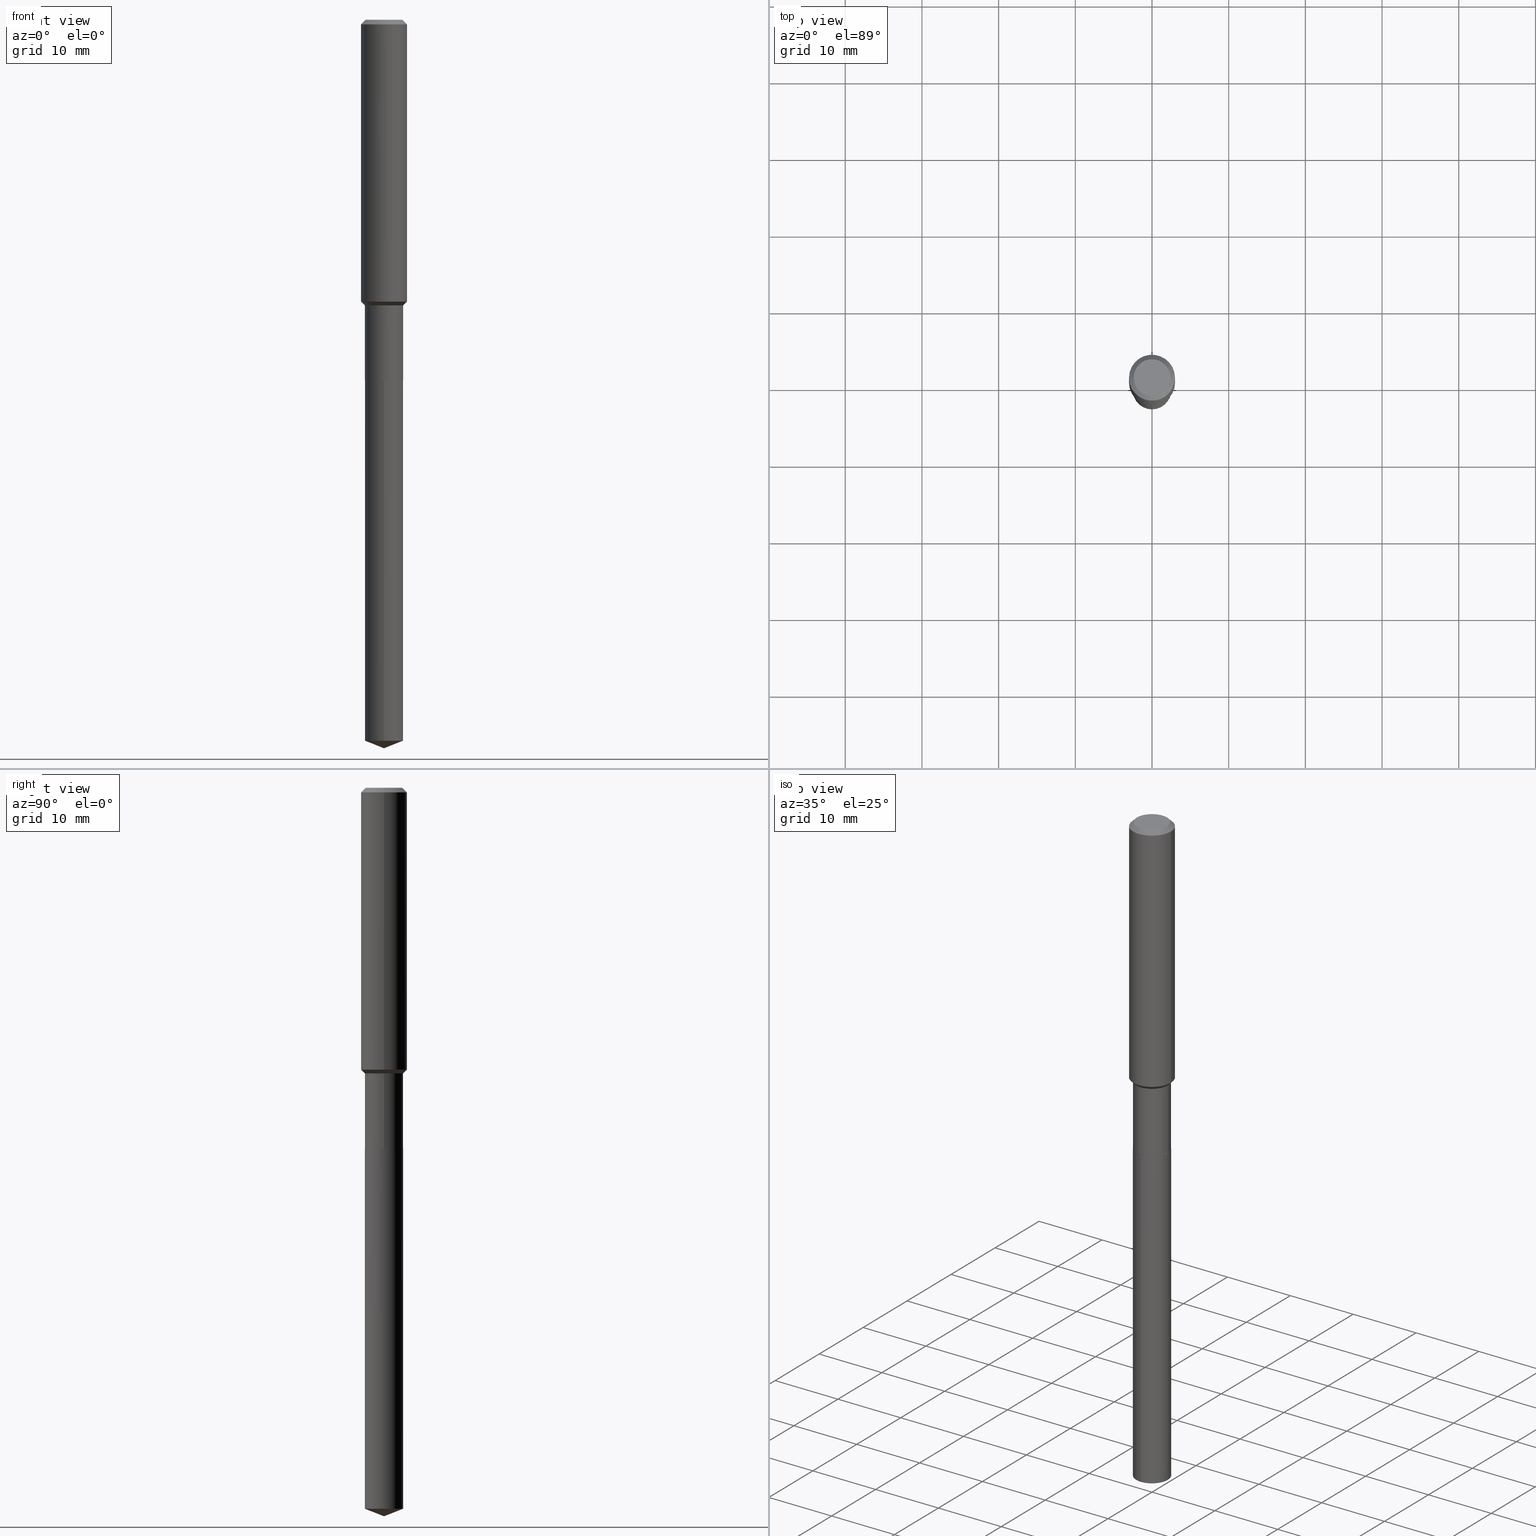
[diagram: canonical four-view strip — front | top / right | iso, engineering-drawing reading convention]
A machine part, canonical four-view strip (front | top / right | iso — engineering-drawing reading convention). The complete STEP part file that produces these views, byte-faithful:
ISO-10303-21;
HEADER;
FILE_DESCRIPTION (( 'STEP AP203' ),
    '1' );
FILE_NAME ('66626.STEP',
    '2024-04-25T02:19:41',
    ( '' ),
    ( '' ),
    'SwSTEP 2.0',
    'SolidWorks 2023',
    '' );
FILE_SCHEMA (( 'CONFIG_CONTROL_DESIGN' ));
ENDSEC;

DATA;
#1 = PERSON_AND_ORGANIZATION ( #208, #348 ) ;
#2 = CARTESIAN_POINT ( 'NONE',  ( 4.525095478964977954E-29, -6.460637069395358365E-15, -1.850400000000000489 ) ) ;
#3 = DIRECTION ( 'NONE',  ( 0.000000000000000000, 0.000000000000000000, 1.000000000000000000 ) ) ;
#4 = FACE_OUTER_BOUND ( 'NONE', #404, .T. ) ;
#5 = PERSON_AND_ORGANIZATION_ROLE ( 'classification_officer' ) ;
#6 = FACE_OUTER_BOUND ( 'NONE', #475, .T. ) ;
#7 =( GEOMETRIC_REPRESENTATION_CONTEXT ( 3 ) GLOBAL_UNCERTAINTY_ASSIGNED_CONTEXT ( ( #288 ) ) GLOBAL_UNIT_ASSIGNED_CONTEXT ( ( #235, #197, #446 ) ) REPRESENTATION_CONTEXT ( 'NONE', 'WORKASPACE' ) );
#8 = CARTESIAN_POINT ( 'NONE',  ( 6.995293233559089281E-16, 0.09844999999998707563, -3.701419513675709982 ) ) ;
#9 = EDGE_CURVE ( 'NONE', #81, #479, #367, .T. ) ;
#10 = DIRECTION ( 'NONE',  ( 1.000000000000000000, -6.982962677686269866E-15, 0.000000000000000000 ) ) ;
#11 = CARTESIAN_POINT ( 'NONE',  ( 0.09844999999999998197, -6.874726756182128559E-16, 4.800596035771097813E-30 ) ) ;
#12 = AXIS2_PLACEMENT_3D ( 'NONE', #82, #387, #429 ) ;
#13 = LINE ( 'NONE', #352, #461 ) ;
#14 = ORIENTED_EDGE ( 'NONE', *, *, #375, .F. ) ;
#15 = DIRECTION ( 'NONE',  ( -2.445468806185136597E-29, 3.491481338843145583E-15, 1.000000000000000000 ) ) ;
#16 = EDGE_LOOP ( 'NONE', ( #170, #201, #445, #440 ) ) ;
#17 = DIRECTION ( 'NONE',  ( -0.7071067811865486830, 7.493145998870357316E-15, 0.7071067811865462405 ) ) ;
#18 = EDGE_LOOP ( 'NONE', ( #333, #272, #195, #308 ) ) ;
#19 = AXIS2_PLACEMENT_3D ( 'NONE', #179, #75, #349 ) ;
#20 = DIRECTION ( 'NONE',  ( -0.7071067811865459074, 2.468850131082240100E-15, -0.7071067811865491270 ) ) ;
#21 = ADVANCED_FACE ( 'NONE', ( #325 ), #483, .T. ) ;
#22 = ORIENTED_EDGE ( 'NONE', *, *, #375, .T. ) ;
#23 = CARTESIAN_POINT ( 'NONE',  ( 3.538471089109583209E-29, -5.051998923239089154E-15, -1.446949999999999958 ) ) ;
#24 = ORIENTED_EDGE ( 'NONE', *, *, #405, .T. ) ;
#25 = DIRECTION ( 'NONE',  ( -6.982962677686265922E-15, -1.000000000000000000, 2.774858297271979165E-15 ) ) ;
#26 = VECTOR ( 'NONE', #20, 39.37007874015748143 ) ;
#27 = ORIENTED_EDGE ( 'NONE', *, *, #304, .T. ) ;
#28 = CYLINDRICAL_SURFACE ( 'NONE', #183, 0.1181000000000000799 ) ;
#29 = ORIENTED_EDGE ( 'NONE', *, *, #101, .F. ) ;
#30 = APPROVAL ( #344, 'UNSPECIFIED' ) ;
#31 = DATE_AND_TIME ( #373, #268 ) ;
#32 = CARTESIAN_POINT ( 'NONE',  ( 3.586524551151121675E-29, -5.120606531547357794E-15, -1.466600000000000126 ) ) ;
#33 = CIRCLE ( 'NONE', #282, 0.09447999999999998066 ) ;
#34 = DIRECTION ( 'NONE',  ( -2.445468806185136877E-29, 3.491481338843145188E-15, 1.000000000000000000 ) ) ;
#35 = DATE_TIME_ROLE ( 'creation_date' ) ;
#36 = CARTESIAN_POINT ( 'NONE',  ( 4.716267017698007905E-46, -6.733579360998555036E-32, -1.928573779297252010E-17 ) ) ;
#37 = PERSON_AND_ORGANIZATION_ROLE ( 'creator' ) ;
#38 = LINE ( 'NONE', #426, #337 ) ;
#39 = CALENDAR_DATE ( 2024, 24, 4 ) ;
#40 = DIRECTION ( 'NONE',  ( 1.000000000000000000, -6.982962677686270655E-15, 0.000000000000000000 ) ) ;
#41 = LOCAL_TIME ( 22, 19, 41.00000000000000000, #298 ) ;
#42 = CARTESIAN_POINT ( 'NONE',  ( -0.09844999999999994034, -4.421077208191540472E-15, -1.466600000000000126 ) ) ;
#43 = DIRECTION ( 'NONE',  ( 1.000000000000000000, -6.982962677686270655E-15, 0.000000000000000000 ) ) ;
#44 = ORIENTED_EDGE ( 'NONE', *, *, #336, .F. ) ;
#45 = CARTESIAN_POINT ( 'NONE',  ( 4.525095478964977394E-29, -6.460637069395357576E-15, -1.850400000000000267 ) ) ;
#46 = VECTOR ( 'NONE', #129, 39.37007874015748143 ) ;
#47 = FACE_OUTER_BOUND ( 'NONE', #161, .T. ) ;
#48 = VERTEX_POINT ( 'NONE', #221 ) ;
#49 = LINE ( 'NONE', #356, #468 ) ;
#50 = EDGE_LOOP ( 'NONE', ( #331, #327, #237, #323 ) ) ;
#51 = CARTESIAN_POINT ( 'NONE',  ( 3.586524551151121675E-29, -5.120606531547357794E-15, -1.466600000000000126 ) ) ;
#52 = VERTEX_POINT ( 'NONE', #67 ) ;
#53 = LOCAL_TIME ( 22, 19, 41.00000000000000000, #215 ) ;
#54 = APPROVAL_PERSON_ORGANIZATION ( #171, #243, #301 ) ;
#55 = CARTESIAN_POINT ( 'NONE',  ( 4.523872744561885153E-29, -6.458891328725936072E-15, -1.849900000000000322 ) ) ;
#56 = CARTESIAN_POINT ( 'NONE',  ( -0.09845000000000002360, -5.090219606780827639E-15, -1.849900000000000322 ) ) ;
#57 = VERTEX_POINT ( 'NONE', #262 ) ;
#58 = DIRECTION ( 'NONE',  ( -6.982962677686265922E-15, -1.000000000000000000, 5.549716594543958330E-15 ) ) ;
#59 = VERTEX_POINT ( 'NONE', #419 ) ;
#60 = EDGE_CURVE ( 'NONE', #134, #159, #38, .T. ) ;
#61 = CARTESIAN_POINT ( 'NONE',  ( 5.776197320209327532E-31, -8.246878922347559293E-17, -0.02362000000000014088 ) ) ;
#62 = CIRCLE ( 'NONE', #329, 0.1180999999999999966 ) ;
#63 = EDGE_LOOP ( 'NONE', ( #155, #24, #365, #164 ) ) ;
#64 = PERSON_AND_ORGANIZATION_ROLE ( 'creator' ) ;
#65 = ORIENTED_EDGE ( 'NONE', *, *, #162, .F. ) ;
#66 = SHAPE_DEFINITION_REPRESENTATION ( #277, #261 ) ;
#67 = CARTESIAN_POINT ( 'NONE',  ( 0.09794999999999999540, -7.144618263674728707E-15, -1.850400000000000489 ) ) ;
#68 = EDGE_CURVE ( 'NONE', #442, #57, #309, .T. ) ;
#69 = ADVANCED_FACE ( 'NONE', ( #182 ), #385, .T. ) ;
#70 = PERSON_AND_ORGANIZATION ( #208, #348 ) ;
#71 = DIRECTION ( 'NONE',  ( -2.445468806185136597E-29, 3.491481338843145583E-15, 1.000000000000000000 ) ) ;
#72 = CIRCLE ( 'NONE', #196, 0.09447999999999998066 ) ;
#73 = PERSON_AND_ORGANIZATION ( #208, #348 ) ;
#74 = CARTESIAN_POINT ( 'NONE',  ( 0.09447999999999998066, -7.704367267948738690E-16, -1.928573779296752193E-17 ) ) ;
#75 = DIRECTION ( 'NONE',  ( -2.438088387897960049E-29, 3.491481338843145188E-15, 1.000000000000000000 ) ) ;
#76 = CYLINDRICAL_SURFACE ( 'NONE', #181, 0.09844999999999998197 ) ;
#77 = EDGE_CURVE ( 'NONE', #83, #57, #144, .T. ) ;
#78 = APPLICATION_CONTEXT ( 'configuration controlled 3d designs of mechanical parts and assemblies' ) ;
#79 = AXIS2_PLACEMENT_3D ( 'NONE', #443, #330, #58 ) ;
#80 = DIRECTION ( 'NONE',  ( -2.445468806185136597E-29, 3.491481338843145583E-15, 1.000000000000000000 ) ) ;
#81 = VERTEX_POINT ( 'NONE', #425 ) ;
#82 = CARTESIAN_POINT ( 'NONE',  ( 9.051727677282155315E-29, -1.292340605784048441E-14, -3.701419513675709094 ) ) ;
#83 = VERTEX_POINT ( 'NONE', #456 ) ;
#84 = ADVANCED_FACE ( 'NONE', ( #6 ), #257, .T. ) ;
#85 = DIRECTION ( 'NONE',  ( -6.982962677686265922E-15, -1.000000000000000000, 2.774858297271979165E-15 ) ) ;
#86 = AXIS2_PLACEMENT_3D ( 'NONE', #98, #241, #403 ) ;
#87 = DIRECTION ( 'NONE',  ( -2.445468806185136597E-29, 3.491481338843145583E-15, 1.000000000000000000 ) ) ;
#88 = ORIENTED_EDGE ( 'NONE', *, *, #320, .F. ) ;
#89 = DIMENSIONAL_EXPONENTS ( 1.000000000000000000, 0.000000000000000000, 0.000000000000000000, 0.000000000000000000, 0.000000000000000000, 0.000000000000000000, 0.000000000000000000 ) ;
#90 = CARTESIAN_POINT ( 'NONE',  ( -6.874726756181675950E-16, -0.09845000000000644902, -1.850400000000000045 ) ) ;
#91 = ADVANCED_FACE ( 'NONE', ( #299 ), #345, .F. ) ;
#92 = ORIENTED_EDGE ( 'NONE', *, *, #60, .F. ) ;
#93 = FACE_OUTER_BOUND ( 'NONE', #407, .T. ) ;
#94 = CC_DESIGN_PERSON_AND_ORGANIZATION_ASSIGNMENT ( #1, #37, ( #187 ) ) ;
#95 = ORIENTED_EDGE ( 'NONE', *, *, #354, .F. ) ;
#96 = CIRCLE ( 'NONE', #12, 0.09844999999999999585 ) ;
#97 = VECTOR ( 'NONE', #151, 39.37007874015748143 ) ;
#98 = CARTESIAN_POINT ( 'NONE',  ( 2.358133508849003952E-46, -3.366789680499277518E-32, -9.642868896486260050E-18 ) ) ;
#99 = ORIENTED_EDGE ( 'NONE', *, *, #227, .F. ) ;
#100 = ORIENTED_EDGE ( 'NONE', *, *, #321, .T. ) ;
#101 = EDGE_CURVE ( 'NONE', #52, #81, #303, .T. ) ;
#102 = CARTESIAN_POINT ( 'NONE',  ( -8.713219678274335127E-28, 1.244004269715567405E-13, 35.62987874015747991 ) ) ;
#103 = EDGE_LOOP ( 'NONE', ( #168, #245, #203 ) ) ;
#104 = MECHANICAL_CONTEXT ( 'NONE', #372, 'mechanical' ) ;
#105 = AXIS2_PLACEMENT_3D ( 'NONE', #32, #335, #149 ) ;
#106 = ORIENTED_EDGE ( 'NONE', *, *, #231, .T. ) ;
#107 = DATE_AND_TIME ( #347, #41 ) ;
#108 = DIRECTION ( 'NONE',  ( 6.982962677686265922E-15, 1.000000000000000000, -3.491464536541551464E-15 ) ) ;
#109 = DIRECTION ( 'NONE',  ( -2.445480539169630025E-29, 3.491464536541551464E-15, 1.000000000000000000 ) ) ;
#110 = DIRECTION ( 'NONE',  ( -2.445468806185136597E-29, 3.491481338843145583E-15, 1.000000000000000000 ) ) ;
#111 = CIRCLE ( 'NONE', #230, 0.09845000000000000973 ) ;
#112 = CARTESIAN_POINT ( 'NONE',  ( 0.000000000000000000, 0.000000000000000000, 0.000000000000000000 ) ) ;
#113 = DIRECTION ( 'NONE',  ( -2.445468806185136597E-29, 3.491481338843145583E-15, 1.000000000000000000 ) ) ;
#114 = CC_DESIGN_PERSON_AND_ORGANIZATION_ASSIGNMENT ( #249, #376, ( #185 ) ) ;
#115 = DIRECTION ( 'NONE',  ( -6.982962677686265922E-15, -1.000000000000000000, 3.498627837350031044E-15 ) ) ;
#116 = DIRECTION ( 'NONE',  ( -2.445468806185136597E-29, 3.491481338843145583E-15, 1.000000000000000000 ) ) ;
#117 = ORIENTED_EDGE ( 'NONE', *, *, #416, .T. ) ;
#118 = CC_DESIGN_SECURITY_CLASSIFICATION ( #369, ( #338 ) ) ;
#119 = CARTESIAN_POINT ( 'NONE',  ( 3.538471089109583209E-29, -5.051998923239089154E-15, -1.446949999999999958 ) ) ;
#120 = CARTESIAN_POINT ( 'NONE',  ( 3.586524551151121675E-29, -5.120606531547357794E-15, -1.466600000000000126 ) ) ;
#121 = EDGE_LOOP ( 'NONE', ( #99, #100, #366, #284 ) ) ;
#122 = APPROVAL ( #339, 'UNSPECIFIED' ) ;
#123 = CARTESIAN_POINT ( 'NONE',  ( 5.776197320209327532E-31, -8.246878922347559293E-17, -0.02362000000000014088 ) ) ;
#124 = DIRECTION ( 'NONE',  ( -0.7071067811864388819, 7.493145998869961307E-15, 0.7071067811866561525 ) ) ;
#125 = ORIENTED_EDGE ( 'NONE', *, *, #178, .F. ) ;
#126 = ADVANCED_FACE ( 'NONE', ( #463 ), #146, .F. ) ;
#127 = DIRECTION ( 'NONE',  ( -2.445468806185136597E-29, 3.491481338843145583E-15, 1.000000000000000000 ) ) ;
#128 = EDGE_LOOP ( 'NONE', ( #92, #27, #388, #95 ) ) ;
#129 = DIRECTION ( 'NONE',  ( -2.445468806185136877E-29, 3.491481338843145188E-15, 1.000000000000000000 ) ) ;
#130 = CARTESIAN_POINT ( 'NONE',  ( 0.000000000000000000, 0.000000000000000000, 0.000000000000000000 ) ) ;
#131 = AXIS2_PLACEMENT_3D ( 'NONE', #55, #198, #363 ) ;
#132 = CIRCLE ( 'NONE', #79, 0.09844999999999999585 ) ;
#133 = LINE ( 'NONE', #398, #368 ) ;
#134 = VERTEX_POINT ( 'NONE', #8 ) ;
#135 = CARTESIAN_POINT ( 'NONE',  ( 4.525095478964977394E-29, -6.460637069395357576E-15, -1.850400000000000267 ) ) ;
#136 = VERTEX_POINT ( 'NONE', #216 ) ;
#137 = FACE_OUTER_BOUND ( 'NONE', #103, .T. ) ;
#138 = ORIENTED_EDGE ( 'NONE', *, *, #162, .T. ) ;
#139 = ADVANCED_FACE ( 'NONE', ( #253 ), #466, .T. ) ;
#140 = AXIS2_PLACEMENT_3D ( 'NONE', #135, #408, #25 ) ;
#141 = DIRECTION ( 'NONE',  ( 1.000000000000000000, -6.982962677686266711E-15, 4.876176775795935793E-29 ) ) ;
#142 = APPROVAL_DATE_TIME ( #454, #122 ) ;
#143 = DIRECTION ( 'NONE',  ( 1.000000000000000000, -6.982962677686270655E-15, 0.000000000000000000 ) ) ;
#144 = LINE ( 'NONE', #294, #390 ) ;
#145 = DATE_AND_TIME ( #334, #437 ) ;
#146 = PLANE ( 'NONE',  #19 ) ;
#147 = ADVANCED_FACE ( 'NONE', ( #490 ), #76, .T. ) ;
#148 = SECURITY_CLASSIFICATION_LEVEL ( 'unclassified' ) ;
#149 = DIRECTION ( 'NONE',  ( 1.000000000000000000, -6.982962677686269866E-15, 0.000000000000000000 ) ) ;
#150 = CARTESIAN_POINT ( 'NONE',  ( 0.09844999999999994034, -5.808079207165570354E-15, -1.466600000000000126 ) ) ;
#151 = DIRECTION ( 'NONE',  ( -2.445468806185136877E-29, 3.491481338843145188E-15, 1.000000000000000000 ) ) ;
#152 = CIRCLE ( 'NONE', #258, 0.09844999999999999585 ) ;
#153 = CARTESIAN_POINT ( 'NONE',  ( 4.525095478964977394E-29, -6.460637069395357576E-15, -1.850400000000000267 ) ) ;
#154 = DIRECTION ( 'NONE',  ( 1.000000000000000000, -6.982962677686263555E-15, 0.000000000000000000 ) ) ;
#155 = ORIENTED_EDGE ( 'NONE', *, *, #9, .T. ) ;
#156 = DIRECTION ( 'NONE',  ( 1.000000000000000000, -6.982962677686266711E-15, 0.000000000000000000 ) ) ;
#157 = CIRCLE ( 'NONE', #453, 0.1181000000000001632 ) ;
#158 = DIRECTION ( 'NONE',  ( -2.445480539169629745E-29, 3.491464536541551464E-15, 1.000000000000000000 ) ) ;
#159 = VERTEX_POINT ( 'NONE', #460 ) ;
#160 = FACE_OUTER_BOUND ( 'NONE', #371, .T. ) ;
#161 = EDGE_LOOP ( 'NONE', ( #276, #88, #270, #397 ) ) ;
#162 = EDGE_CURVE ( 'NONE', #52, #286, #239, .T. ) ;
#163 =( LENGTH_UNIT ( ) NAMED_UNIT ( * ) SI_UNIT ( $, .METRE. ) );
#164 = ORIENTED_EDGE ( 'NONE', *, *, #340, .F. ) ;
#165 = AXIS2_PLACEMENT_3D ( 'NONE', #259, #423, #40 ) ;
#166 = AXIS2_PLACEMENT_3D ( 'NONE', #61, #326, #488 ) ;
#167 = LINE ( 'NONE', #169, #355 ) ;
#168 = ORIENTED_EDGE ( 'NONE', *, *, #280, .F. ) ;
#169 = CARTESIAN_POINT ( 'NONE',  ( 0.09844999999999994034, -5.808079207165570354E-15, -1.466600000000000126 ) ) ;
#170 = ORIENTED_EDGE ( 'NONE', *, *, #422, .T. ) ;
#171 = PERSON_AND_ORGANIZATION ( #208, #348 ) ;
#172 = CARTESIAN_POINT ( 'NONE',  ( 5.776197320209327532E-31, -8.246878922347559293E-17, -0.02362000000000014088 ) ) ;
#173 = AXIS2_PLACEMENT_3D ( 'NONE', #265, #465, #192 ) ;
#174 = CARTESIAN_POINT ( 'NONE',  ( -8.713219678274335127E-28, 1.244004269715567405E-13, 35.62987874015747991 ) ) ;
#175 = APPROVAL_DATE_TIME ( #180, #30 ) ;
#176 = DIRECTION ( 'NONE',  ( -2.445468806185136597E-29, 3.491481338843145583E-15, 1.000000000000000000 ) ) ;
#177 = PERSON_AND_ORGANIZATION ( #208, #348 ) ;
#178 = EDGE_CURVE ( 'NONE', #136, #134, #297, .T. ) ;
#179 = CARTESIAN_POINT ( 'NONE',  ( 9.213224486800139199E-30, -1.162144516278622558E-14, -1.850400000000000489 ) ) ;
#180 = DATE_AND_TIME ( #383, #393 ) ;
#181 = AXIS2_PLACEMENT_3D ( 'NONE', #341, #113, #218 ) ;
#182 = FACE_OUTER_BOUND ( 'NONE', #121, .T. ) ;
#183 = AXIS2_PLACEMENT_3D ( 'NONE', #359, #127, #322 ) ;
#184 = LINE ( 'NONE', #42, #189 ) ;
#185 = PRODUCT ( '66626', '66626', '', ( #104 ) ) ;
#186 = DIRECTION ( 'NONE',  ( -2.445468806185136877E-29, 3.491481338843145188E-15, 1.000000000000000000 ) ) ;
#187 = PRODUCT_DEFINITION ( 'UNKNOWN', '', #338, #413 ) ;
#188 = DIRECTION ( 'NONE',  ( 1.000000000000000000, -6.982962677686269866E-15, 0.000000000000000000 ) ) ;
#189 = VECTOR ( 'NONE', #17, 39.37007874015748854 ) ;
#190 = DIRECTION ( 'NONE',  ( -6.982962677686265922E-15, -1.000000000000000000, 2.774858297271979165E-15 ) ) ;
#191 = EDGE_CURVE ( 'NONE', #205, #374, #33, .T. ) ;
#192 = DIRECTION ( 'NONE',  ( -1.000000000000000000, 6.982962677686266711E-15, 0.000000000000000000 ) ) ;
#193 = EDGE_LOOP ( 'NONE', ( #117, #447, #14, #399 ) ) ;
#194 = CARTESIAN_POINT ( 'NONE',  ( -0.1180999999999999966, 7.422191030112725094E-16, -0.02362000000000014088 ) ) ;
#195 = ORIENTED_EDGE ( 'NONE', *, *, #306, .T. ) ;
#196 = AXIS2_PLACEMENT_3D ( 'NONE', #436, #226, #396 ) ;
#197 =( NAMED_UNIT ( * ) PLANE_ANGLE_UNIT ( ) SI_UNIT ( $, .RADIAN. ) );
#198 = DIRECTION ( 'NONE',  ( -2.445468806185136597E-29, 3.491481338843145583E-15, 1.000000000000000000 ) ) ;
#199 = ADVANCED_FACE ( 'NONE', ( #4 ), #328, .T. ) ;
#200 = DIRECTION ( 'NONE',  ( 0.7071067811865486830, -2.468850131082269682E-15, 0.7071067811865462405 ) ) ;
#201 = ORIENTED_EDGE ( 'NONE', *, *, #336, .T. ) ;
#202 = DIRECTION ( 'NONE',  ( 0.7071067811865459074, -7.319954787623249734E-15, -0.7071067811865491270 ) ) ;
#203 = ORIENTED_EDGE ( 'NONE', *, *, #416, .F. ) ;
#204 = CARTESIAN_POINT ( 'NONE',  ( -6.874726756181222355E-16, -0.09845000000001290219, -3.701419513675708650 ) ) ;
#205 = VERTEX_POINT ( 'NONE', #74 ) ;
#206 = PERSON_AND_ORGANIZATION ( #208, #348 ) ;
#207 = CC_DESIGN_DATE_AND_TIME_ASSIGNMENT ( #31, #459, ( #369 ) ) ;
#208 = PERSON ( 'UNSPECIFIED', 'UNSPECIFIED', 'UNSPECIFIED', ('UNSPECIFIED'), ('UNSPECIFIED'), ('UNSPECIFIED') ) ;
#209 = VERTEX_POINT ( 'NONE', #382 ) ;
#210 = CARTESIAN_POINT ( 'NONE',  ( 0.09794999999999999540, -7.144618263674728707E-15, -1.850400000000000489 ) ) ;
#211 = COORDINATED_UNIVERSAL_TIME_OFFSET ( 5, 0, .BEHIND. ) ;
#212 = CIRCLE ( 'NONE', #283, 0.09844999999999994034 ) ;
#213 = APPROVAL_PERSON_ORGANIZATION ( #177, #30, #424 ) ;
#214 = DIRECTION ( 'NONE',  ( 1.000000000000000000, -6.982962677686270655E-15, 0.000000000000000000 ) ) ;
#215 = COORDINATED_UNIVERSAL_TIME_OFFSET ( 5, 0, .BEHIND. ) ;
#216 = CARTESIAN_POINT ( 'NONE',  ( 9.146586312602250272E-29, -1.305877565957271148E-14, -3.740200000000000191 ) ) ;
#217 = APPLICATION_PROTOCOL_DEFINITION ( 'international standard', 'config_control_design', 1994, #78 ) ;
#218 = DIRECTION ( 'NONE',  ( 1.000000000000000000, -6.982962677686266711E-15, 4.876176775795935793E-29 ) ) ;
#219 = ADVANCED_FACE ( 'NONE', ( #275 ), #358, .T. ) ;
#220 = VECTOR ( 'NONE', #381, 39.37007874015748143 ) ;
#221 = CARTESIAN_POINT ( 'NONE',  ( -0.1181000000000001632, -4.212847952306410168E-15, -1.446949999999999958 ) ) ;
#222 = CIRCLE ( 'NONE', #140, 0.09844999999999999585 ) ;
#223 = ADVANCED_FACE ( 'NONE', ( #47 ), #444, .T. ) ;
#224 = LINE ( 'NONE', #90, #427 ) ;
#225 = EDGE_LOOP ( 'NONE', ( #251, #267, #278, #415 ) ) ;
#226 = DIRECTION ( 'NONE',  ( -2.445468806185136597E-29, 3.491481338843145583E-15, 1.000000000000000000 ) ) ;
#227 = EDGE_CURVE ( 'NONE', #286, #479, #269, .T. ) ;
#228 = AXIS2_PLACEMENT_3D ( 'NONE', #317, #15, #357 ) ;
#229 = ORIENTED_EDGE ( 'NONE', *, *, #68, .F. ) ;
#230 = AXIS2_PLACEMENT_3D ( 'NONE', #364, #486, #233 ) ;
#231 = EDGE_CURVE ( 'NONE', #48, #83, #157, .T. ) ;
#232 = CYLINDRICAL_SURFACE ( 'NONE', #402, 0.09844999999999999585 ) ;
#233 = DIRECTION ( 'NONE',  ( 1.000000000000000000, -6.982962677686265133E-15, 0.000000000000000000 ) ) ;
#234 = ORIENTED_EDGE ( 'NONE', *, *, #77, .T. ) ;
#235 =( CONVERSION_BASED_UNIT ( 'INCH', #441 ) LENGTH_UNIT ( ) NAMED_UNIT ( #89 ) );
#236 = EDGE_CURVE ( 'NONE', #290, #59, #212, .T. ) ;
#237 = ORIENTED_EDGE ( 'NONE', *, *, #340, .T. ) ;
#238 = CLOSED_SHELL ( 'NONE', ( #199, #428, #219, #84, #21, #147, #414, #379, #223, #467, #126, #69 ) ) ;
#239 = CIRCLE ( 'NONE', #291, 0.09794999999999999540 ) ;
#240 = CIRCLE ( 'NONE', #484, 0.09844999999999994034 ) ;
#241 = DIRECTION ( 'NONE',  ( 2.438088387897960049E-29, -3.491481338843145188E-15, -1.000000000000000000 ) ) ;
#242 = ORIENTED_EDGE ( 'NONE', *, *, #236, .T. ) ;
#243 = APPROVAL ( #342, 'UNSPECIFIED' ) ;
#244 = CARTESIAN_POINT ( 'NONE',  ( -0.09447999999999998066, 7.009847083995354710E-16, -1.928573779297727792E-17 ) ) ;
#245 = ORIENTED_EDGE ( 'NONE', *, *, #178, .T. ) ;
#246 = FACE_OUTER_BOUND ( 'NONE', #18, .T. ) ;
#247 = ORIENTED_EDGE ( 'NONE', *, *, #296, .T. ) ;
#248 = CC_DESIGN_APPROVAL ( #122, ( #187 ) ) ;
#249 = PERSON_AND_ORGANIZATION ( #208, #348 ) ;
#250 = CC_DESIGN_PERSON_AND_ORGANIZATION_ASSIGNMENT ( #206, #5, ( #369 ) ) ;
#251 = ORIENTED_EDGE ( 'NONE', *, *, #296, .F. ) ;
#252 = COORDINATED_UNIVERSAL_TIME_OFFSET ( 5, 0, .BEHIND. ) ;
#253 = FACE_OUTER_BOUND ( 'NONE', #471, .T. ) ;
#254 = DIRECTION ( 'NONE',  ( 1.000000000000000000, 0.000000000000000000, 0.000000000000000000 ) ) ;
#255 = DIRECTION ( 'NONE',  ( 6.611014441532059489E-15, 0.9304175679820261280, 0.3665012267242929167 ) ) ;
#256 = ADVANCED_FACE ( 'NONE', ( #439 ), #232, .T. ) ;
#257 = CONICAL_SURFACE ( 'NONE', #105, 0.09844999999999994034, 0.7853981633974500554 ) ;
#258 = AXIS2_PLACEMENT_3D ( 'NONE', #434, #392, #190 ) ;
#259 = CARTESIAN_POINT ( 'NONE',  ( 4.525095478964977954E-29, -6.460637069395358365E-15, -1.850400000000000489 ) ) ;
#260 = APPLICATION_PROTOCOL_DEFINITION ( 'international standard', 'config_control_design', 1994, #372 ) ;
#261 = ADVANCED_BREP_SHAPE_REPRESENTATION ( '66626', ( #469, #480, #361 ), #7 ) ;
#262 = CARTESIAN_POINT ( 'NONE',  ( 0.1180999999999999966, -9.071566814582237199E-16, -0.02362000000000014088 ) ) ;
#263 = EDGE_CURVE ( 'NONE', #431, #209, #224, .T. ) ;
#264 = CARTESIAN_POINT ( 'NONE',  ( 4.525095478964977394E-29, -6.460637069395357576E-15, -1.850400000000000267 ) ) ;
#265 = CARTESIAN_POINT ( 'NONE',  ( 5.776197320209327532E-31, -8.246878922347559293E-17, -0.02362000000000014088 ) ) ;
#266 = AXIS2_PLACEMENT_3D ( 'NONE', #23, #362, #332 ) ;
#267 = ORIENTED_EDGE ( 'NONE', *, *, #287, .T. ) ;
#268 = LOCAL_TIME ( 22, 19, 41.00000000000000000, #211 ) ;
#269 = LINE ( 'NONE', #307, #300 ) ;
#270 = ORIENTED_EDGE ( 'NONE', *, *, #432, .T. ) ;
#271 = DIRECTION ( 'NONE',  ( -6.982962677686265922E-15, -1.000000000000000000, 2.774858297271979165E-15 ) ) ;
#272 = ORIENTED_EDGE ( 'NONE', *, *, #481, .T. ) ;
#273 = DIRECTION ( 'NONE',  ( -2.445468806185136597E-29, 3.491481338843145583E-15, 1.000000000000000000 ) ) ;
#274 = CLOSED_SHELL ( 'NONE', ( #350, #450, #139, #256, #91 ) ) ;
#275 = FACE_OUTER_BOUND ( 'NONE', #16, .T. ) ;
#276 = ORIENTED_EDGE ( 'NONE', *, *, #481, .F. ) ;
#277 = PRODUCT_DEFINITION_SHAPE ( 'NONE', 'NONE',  #187 ) ;
#278 = ORIENTED_EDGE ( 'NONE', *, *, #395, .T. ) ;
#279 = CARTESIAN_POINT ( 'NONE',  ( -0.1180999999999999966, -1.728082885298602925E-15, -0.02362000000000014088 ) ) ;
#280 = EDGE_CURVE ( 'NONE', #136, #431, #49, .T. ) ;
#281 = DIRECTION ( 'NONE',  ( -2.445468806185136597E-29, 3.491481338843145583E-15, 1.000000000000000000 ) ) ;
#282 = AXIS2_PLACEMENT_3D ( 'NONE', #36, #176, #343 ) ;
#283 = AXIS2_PLACEMENT_3D ( 'NONE', #120, #87, #188 ) ;
#284 = ORIENTED_EDGE ( 'NONE', *, *, #430, .F. ) ;
#285 = LINE ( 'NONE', #482, #46 ) ;
#286 = VERTEX_POINT ( 'NONE', #386 ) ;
#287 = EDGE_CURVE ( 'NONE', #59, #290, #240, .T. ) ;
#288 = UNCERTAINTY_MEASURE_WITH_UNIT (LENGTH_MEASURE( 1.000000000000000082E-05 ), #235, 'distance_accuracy_value', 'NONE');
#289 = DIRECTION ( 'NONE',  ( -6.982962677686265922E-15, -1.000000000000000000, 3.498627837350031044E-15 ) ) ;
#290 = VERTEX_POINT ( 'NONE', #150 ) ;
#291 = AXIS2_PLACEMENT_3D ( 'NONE', #2, #110, #143 ) ;
#292 = AXIS2_PLACEMENT_3D ( 'NONE', #51, #406, #370 ) ;
#293 = APPROVAL_ROLE ( '' ) ;
#294 = CARTESIAN_POINT ( 'NONE',  ( 0.1181000000000000799, -8.246878922347486570E-16, 5.758764772215004644E-30 ) ) ;
#295 = PERSON_AND_ORGANIZATION ( #208, #348 ) ;
#296 = EDGE_CURVE ( 'NONE', #59, #48, #184, .T. ) ;
#297 = LINE ( 'NONE', #458, #476 ) ;
#298 = COORDINATED_UNIVERSAL_TIME_OFFSET ( 5, 0, .BEHIND. ) ;
#299 = FACE_OUTER_BOUND ( 'NONE', #394, .T. ) ;
#300 = VECTOR ( 'NONE', #124, 39.37007874015748143 ) ;
#301 = APPROVAL_ROLE ( '' ) ;
#302 = AXIS2_PLACEMENT_3D ( 'NONE', #102, #158, #289 ) ;
#303 = LINE ( 'NONE', #210, #220 ) ;
#304 = EDGE_CURVE ( 'NONE', #134, #431, #96, .T. ) ;
#305 = DIRECTION ( 'NONE',  ( 2.445480539169629464E-29, -3.491464536541551464E-15, -1.000000000000000000 ) ) ;
#306 = EDGE_CURVE ( 'NONE', #57, #442, #62, .T. ) ;
#307 = CARTESIAN_POINT ( 'NONE',  ( -0.09794999999999999540, -5.764660459718340364E-15, -1.850400000000000489 ) ) ;
#308 = ORIENTED_EDGE ( 'NONE', *, *, #432, .F. ) ;
#309 = CIRCLE ( 'NONE', #318, 0.1180999999999999966 ) ;
#310 = CONICAL_SURFACE ( 'NONE', #302, 99.94676754583920797, 1.195550537616116848 ) ;
#311 = FACE_OUTER_BOUND ( 'NONE', #193, .T. ) ;
#312 = CIRCLE ( 'NONE', #421, 0.09794999999999999540 ) ;
#313 = CARTESIAN_POINT ( 'NONE',  ( 3.586524551151121675E-29, -5.120606531547357794E-15, -1.466600000000000126 ) ) ;
#314 = ORIENTED_EDGE ( 'NONE', *, *, #354, .T. ) ;
#315 = DIRECTION ( 'NONE',  ( -2.445480539169629745E-29, 3.491464536541551464E-15, 1.000000000000000000 ) ) ;
#316 = ORIENTED_EDGE ( 'NONE', *, *, #191, .T. ) ;
#317 = CARTESIAN_POINT ( 'NONE',  ( 0.000000000000000000, 0.000000000000000000, 0.000000000000000000 ) ) ;
#318 = AXIS2_PLACEMENT_3D ( 'NONE', #172, #420, #377 ) ;
#319 = CIRCLE ( 'NONE', #266, 0.1181000000000001632 ) ;
#320 = EDGE_CURVE ( 'NONE', #374, #205, #72, .T. ) ;
#321 = EDGE_CURVE ( 'NONE', #286, #52, #312, .T. ) ;
#322 = DIRECTION ( 'NONE',  ( 1.000000000000000000, -6.982962677686266711E-15, 4.876176775795936353E-29 ) ) ;
#323 = ORIENTED_EDGE ( 'NONE', *, *, #287, .F. ) ;
#324 = FACE_OUTER_BOUND ( 'NONE', #225, .T. ) ;
#325 = FACE_OUTER_BOUND ( 'NONE', #63, .T. ) ;
#326 = DIRECTION ( 'NONE',  ( 2.445468806185136597E-29, -3.491481338843145583E-15, -1.000000000000000000 ) ) ;
#327 = ORIENTED_EDGE ( 'NONE', *, *, #430, .T. ) ;
#328 = CONICAL_SURFACE ( 'NONE', #165, 0.09794999999999999540, 0.7853981633972946241 ) ;
#329 = AXIS2_PLACEMENT_3D ( 'NONE', #123, #273, #156 ) ;
#330 = DIRECTION ( 'NONE',  ( -2.445480539169629745E-29, 3.491464536541551464E-15, 1.000000000000000000 ) ) ;
#331 = ORIENTED_EDGE ( 'NONE', *, *, #405, .F. ) ;
#332 = DIRECTION ( 'NONE',  ( 1.000000000000000000, -6.982962677686263555E-15, 0.000000000000000000 ) ) ;
#333 = ORIENTED_EDGE ( 'NONE', *, *, #191, .F. ) ;
#334 = CALENDAR_DATE ( 2024, 24, 4 ) ;
#335 = DIRECTION ( 'NONE',  ( -2.445468806185136597E-29, 3.491481338843145583E-15, 1.000000000000000000 ) ) ;
#336 = EDGE_CURVE ( 'NONE', #48, #442, #13, .T. ) ;
#337 = VECTOR ( 'NONE', #109, 39.37007874015748143 ) ;
#338 = PRODUCT_DEFINITION_FORMATION_WITH_SPECIFIED_SOURCE ( 'ANY', '', #185, .NOT_KNOWN. ) ;
#339 = APPROVAL_STATUS ( 'not_yet_approved' ) ;
#340 = EDGE_CURVE ( 'NONE', #81, #290, #353, .T. ) ;
#341 = CARTESIAN_POINT ( 'NONE',  ( 0.000000000000000000, 0.000000000000000000, 0.000000000000000000 ) ) ;
#342 = APPROVAL_STATUS ( 'not_yet_approved' ) ;
#343 = DIRECTION ( 'NONE',  ( 1.000000000000000000, -6.982962677686267499E-15, 4.875432709231658792E-29 ) ) ;
#344 = APPROVAL_STATUS ( 'not_yet_approved' ) ;
#345 = PLANE ( 'NONE',  #346 ) ;
#346 = AXIS2_PLACEMENT_3D ( 'NONE', #264, #305, #108 ) ;
#347 = CALENDAR_DATE ( 2024, 24, 4 ) ;
#348 = ORGANIZATION ( 'UNSPECIFIED', 'UNSPECIFIED', '' ) ;
#349 = DIRECTION ( 'NONE',  ( 1.000000000000000000, -6.982962677686265922E-15, 4.876176775795935793E-29 ) ) ;
#350 = ADVANCED_FACE ( 'NONE', ( #311 ), #470, .T. ) ;
#351 = CC_DESIGN_PERSON_AND_ORGANIZATION_ASSIGNMENT ( #70, #64, ( #338 ) ) ;
#352 = CARTESIAN_POINT ( 'NONE',  ( -0.1181000000000000799, 8.391509709326788873E-16, -5.809262341591047988E-30 ) ) ;
#353 = LINE ( 'NONE', #11, #97 ) ;
#354 = EDGE_CURVE ( 'NONE', #159, #209, #152, .T. ) ;
#355 = VECTOR ( 'NONE', #200, 39.37007874015748854 ) ;
#356 = CARTESIAN_POINT ( 'NONE',  ( 9.146542891173238393E-29, -1.305883784153045268E-14, -3.740200000000000191 ) ) ;
#357 = DIRECTION ( 'NONE',  ( 1.000000000000000000, -6.982962677686266711E-15, 4.876176775795936353E-29 ) ) ;
#358 = CYLINDRICAL_SURFACE ( 'NONE', #228, 0.1181000000000000799 ) ;
#359 = CARTESIAN_POINT ( 'NONE',  ( 0.000000000000000000, 0.000000000000000000, 0.000000000000000000 ) ) ;
#360 = ORIENTED_EDGE ( 'NONE', *, *, #227, .T. ) ;
#361 = AXIS2_PLACEMENT_3D ( 'NONE', #112, #3, #254 ) ;
#362 = DIRECTION ( 'NONE',  ( -2.445468806185136597E-29, 3.491481338843145583E-15, 1.000000000000000000 ) ) ;
#363 = DIRECTION ( 'NONE',  ( 1.000000000000000000, -6.982962677686265133E-15, 0.000000000000000000 ) ) ;
#364 = CARTESIAN_POINT ( 'NONE',  ( 4.523872744561885153E-29, -6.458891328725936072E-15, -1.849900000000000322 ) ) ;
#365 = ORIENTED_EDGE ( 'NONE', *, *, #236, .F. ) ;
#366 = ORIENTED_EDGE ( 'NONE', *, *, #101, .T. ) ;
#367 = CIRCLE ( 'NONE', #131, 0.09845000000000000973 ) ;
#368 = VECTOR ( 'NONE', #202, 39.37007874015748143 ) ;
#369 = SECURITY_CLASSIFICATION ( '', '', #148 ) ;
#370 = DIRECTION ( 'NONE',  ( 1.000000000000000000, -6.982962677686269866E-15, 0.000000000000000000 ) ) ;
#371 = EDGE_LOOP ( 'NONE', ( #44, #106, #234, #229 ) ) ;
#372 = APPLICATION_CONTEXT ( 'configuration controlled 3d designs of mechanical parts and assemblies' ) ;
#373 = CALENDAR_DATE ( 2024, 24, 4 ) ;
#374 = VERTEX_POINT ( 'NONE', #244 ) ;
#375 = EDGE_CURVE ( 'NONE', #209, #159, #222, .T. ) ;
#376 = PERSON_AND_ORGANIZATION_ROLE ( 'design_owner' ) ;
#377 = DIRECTION ( 'NONE',  ( 1.000000000000000000, -6.982962677686266711E-15, 0.000000000000000000 ) ) ;
#378 = AXIS2_PLACEMENT_3D ( 'NONE', #153, #472, #271 ) ;
#379 = ADVANCED_FACE ( 'NONE', ( #160 ), #28, .T. ) ;
#380 = COORDINATED_UNIVERSAL_TIME_OFFSET ( 5, 0, .BEHIND. ) ;
#381 = DIRECTION ( 'NONE',  ( 0.7071067811864388819, -2.468850131081119129E-15, 0.7071067811866561525 ) ) ;
#382 = CARTESIAN_POINT ( 'NONE',  ( -6.874726756181675950E-16, -0.09845000000000644902, -1.850400000000000045 ) ) ;
#383 = CALENDAR_DATE ( 2024, 24, 4 ) ;
#384 = DIRECTION ( 'NONE',  ( -2.445480539169629745E-29, 3.491464536541551464E-15, 1.000000000000000000 ) ) ;
#385 = CONICAL_SURFACE ( 'NONE', #400, 0.09794999999999999540, 0.7853981633972946241 ) ;
#386 = CARTESIAN_POINT ( 'NONE',  ( -0.09794999999999999540, -5.762011232544228374E-15, -1.850400000000000489 ) ) ;
#387 = DIRECTION ( 'NONE',  ( -2.445480539169629745E-29, 3.491464536541551464E-15, 1.000000000000000000 ) ) ;
#388 = ORIENTED_EDGE ( 'NONE', *, *, #263, .T. ) ;
#389 = CARTESIAN_POINT ( 'NONE',  ( 4.525095478964977954E-29, -6.460637069395358365E-15, -1.850400000000000489 ) ) ;
#390 = VECTOR ( 'NONE', #34, 39.37007874015748143 ) ;
#391 = CONICAL_SURFACE ( 'NONE', #166, 0.1180999999999999966, 0.7853981633974460586 ) ;
#392 = DIRECTION ( 'NONE',  ( -2.445480539169629745E-29, 3.491464536541551464E-15, 1.000000000000000000 ) ) ;
#393 = LOCAL_TIME ( 22, 19, 41.00000000000000000, #252 ) ;
#394 = EDGE_LOOP ( 'NONE', ( #22, #314 ) ) ;
#395 = EDGE_CURVE ( 'NONE', #290, #83, #167, .T. ) ;
#396 = DIRECTION ( 'NONE',  ( 1.000000000000000000, -6.982962677686267499E-15, 4.875432709231658792E-29 ) ) ;
#397 = ORIENTED_EDGE ( 'NONE', *, *, #68, .T. ) ;
#398 = CARTESIAN_POINT ( 'NONE',  ( 0.1180999999999999966, -8.926936027602933910E-16, -0.02362000000000014088 ) ) ;
#399 = ORIENTED_EDGE ( 'NONE', *, *, #263, .F. ) ;
#400 = AXIS2_PLACEMENT_3D ( 'NONE', #464, #71, #214 ) ;
#401 = ORIENTED_EDGE ( 'NONE', *, *, #9, .F. ) ;
#402 = AXIS2_PLACEMENT_3D ( 'NONE', #45, #315, #85 ) ;
#403 = DIRECTION ( 'NONE',  ( -1.000000000000000000, 6.982962677686265922E-15, -4.876176775795935793E-29 ) ) ;
#404 = EDGE_LOOP ( 'NONE', ( #138, #360, #401, #29 ) ) ;
#405 = EDGE_CURVE ( 'NONE', #479, #59, #285, .T. ) ;
#406 = DIRECTION ( 'NONE',  ( -2.445468806185136597E-29, 3.491481338843145583E-15, 1.000000000000000000 ) ) ;
#407 = EDGE_LOOP ( 'NONE', ( #409, #316 ) ) ;
#408 = DIRECTION ( 'NONE',  ( -2.445480539169629745E-29, 3.491464536541551464E-15, 1.000000000000000000 ) ) ;
#409 = ORIENTED_EDGE ( 'NONE', *, *, #320, .T. ) ;
#410 = AXIS2_PLACEMENT_3D ( 'NONE', #174, #384, #115 ) ;
#411 = APPROVAL_PERSON_ORGANIZATION ( #73, #122, #293 ) ;
#412 = CC_DESIGN_APPROVAL ( #30, ( #338 ) ) ;
#413 = DESIGN_CONTEXT ( 'detailed design', #78, 'design' ) ;
#414 = ADVANCED_FACE ( 'NONE', ( #324 ), #477, .T. ) ;
#415 = ORIENTED_EDGE ( 'NONE', *, *, #231, .F. ) ;
#416 = EDGE_CURVE ( 'NONE', #431, #134, #132, .T. ) ;
#417 = PERSON_AND_ORGANIZATION_ROLE ( 'design_supplier' ) ;
#418 = CC_DESIGN_DATE_AND_TIME_ASSIGNMENT ( #107, #35, ( #187 ) ) ;
#419 = CARTESIAN_POINT ( 'NONE',  ( -0.09844999999999994034, -5.090219606780828428E-15, -1.466600000000000126 ) ) ;
#420 = DIRECTION ( 'NONE',  ( -2.445468806185136597E-29, 3.491481338843145583E-15, 1.000000000000000000 ) ) ;
#421 = AXIS2_PLACEMENT_3D ( 'NONE', #389, #478, #43 ) ;
#422 = EDGE_CURVE ( 'NONE', #83, #48, #319, .T. ) ;
#423 = DIRECTION ( 'NONE',  ( -2.445468806185136597E-29, 3.491481338843145583E-15, 1.000000000000000000 ) ) ;
#424 = APPROVAL_ROLE ( '' ) ;
#425 = CARTESIAN_POINT ( 'NONE',  ( 0.09845000000000000973, -7.146364004344149421E-15, -1.849900000000000322 ) ) ;
#426 = CARTESIAN_POINT ( 'NONE',  ( 6.995293233558637658E-16, 0.09844999999999354268, -1.850400000000000489 ) ) ;
#427 = VECTOR ( 'NONE', #474, 39.37007874015748143 ) ;
#428 = ADVANCED_FACE ( 'NONE', ( #246 ), #391, .T. ) ;
#429 = DIRECTION ( 'NONE',  ( -6.982962677686265922E-15, -1.000000000000000000, 5.549716594543958330E-15 ) ) ;
#430 = EDGE_CURVE ( 'NONE', #479, #81, #111, .T. ) ;
#431 = VERTEX_POINT ( 'NONE', #204 ) ;
#432 = EDGE_CURVE ( 'NONE', #374, #442, #448, .T. ) ;
#433 = DIRECTION ( 'NONE',  ( -6.497071151882113525E-15, -0.9304175679820235745, 0.3665012267242995225 ) ) ;
#434 = CARTESIAN_POINT ( 'NONE',  ( 4.525095478964977394E-29, -6.460637069395357576E-15, -1.850400000000000267 ) ) ;
#435 = AXIS2_PLACEMENT_3D ( 'NONE', #130, #281, #141 ) ;
#436 = CARTESIAN_POINT ( 'NONE',  ( 4.716267017698007905E-46, -6.733579360998555036E-32, -1.928573779297252010E-17 ) ) ;
#437 = LOCAL_TIME ( 22, 19, 41.00000000000000000, #380 ) ;
#438 = CC_DESIGN_PERSON_AND_ORGANIZATION_ASSIGNMENT ( #295, #417, ( #338 ) ) ;
#439 = FACE_OUTER_BOUND ( 'NONE', #128, .T. ) ;
#440 = ORIENTED_EDGE ( 'NONE', *, *, #77, .F. ) ;
#441 = LENGTH_MEASURE_WITH_UNIT ( LENGTH_MEASURE( 0.02539999999999999897 ), #163 );
#442 = VERTEX_POINT ( 'NONE', #279 ) ;
#443 = CARTESIAN_POINT ( 'NONE',  ( 9.051727677282155315E-29, -1.292340605784048441E-14, -3.701419513675709094 ) ) ;
#444 = CONICAL_SURFACE ( 'NONE', #173, 0.1180999999999999966, 0.7853981633974460586 ) ;
#445 = ORIENTED_EDGE ( 'NONE', *, *, #306, .F. ) ;
#446 =( NAMED_UNIT ( * ) SI_UNIT ( $, .STERADIAN. ) SOLID_ANGLE_UNIT ( ) );
#447 = ORIENTED_EDGE ( 'NONE', *, *, #60, .T. ) ;
#448 = LINE ( 'NONE', #194, #26 ) ;
#449 = ORIENTED_EDGE ( 'NONE', *, *, #321, .F. ) ;
#450 = ADVANCED_FACE ( 'NONE', ( #137 ), #310, .T. ) ;
#451 = PLANE ( 'NONE',  #86 ) ;
#452 = ORIENTED_EDGE ( 'NONE', *, *, #280, .T. ) ;
#453 = AXIS2_PLACEMENT_3D ( 'NONE', #119, #80, #154 ) ;
#454 = DATE_AND_TIME ( #39, #53 ) ;
#455 = PRODUCT_RELATED_PRODUCT_CATEGORY ( 'detail', '', ( #185 ) ) ;
#456 = CARTESIAN_POINT ( 'NONE',  ( 0.1181000000000001632, -5.876686815473838994E-15, -1.446949999999999958 ) ) ;
#457 = APPROVAL_DATE_TIME ( #145, #243 ) ;
#458 = CARTESIAN_POINT ( 'NONE',  ( 9.146586693356927948E-29, -1.305877565957271148E-14, -3.740200000000000191 ) ) ;
#459 = DATE_TIME_ROLE ( 'classification_date' ) ;
#460 = CARTESIAN_POINT ( 'NONE',  ( 6.995293233559093225E-16, 0.09844999999999354268, -1.850400000000000489 ) ) ;
#461 = VECTOR ( 'NONE', #186, 39.37007874015748143 ) ;
#462 = CC_DESIGN_APPROVAL ( #243, ( #369 ) ) ;
#463 = FACE_OUTER_BOUND ( 'NONE', #489, .T. ) ;
#464 = CARTESIAN_POINT ( 'NONE',  ( 4.525095478964977954E-29, -6.460637069395358365E-15, -1.850400000000000489 ) ) ;
#465 = DIRECTION ( 'NONE',  ( 2.445468806185136597E-29, -3.491481338843145583E-15, -1.000000000000000000 ) ) ;
#466 = CONICAL_SURFACE ( 'NONE', #410, 99.94676754583920797, 1.195550537616116848 ) ;
#467 = ADVANCED_FACE ( 'NONE', ( #93 ), #451, .F. ) ;
#468 = VECTOR ( 'NONE', #433, 39.37007874015748854 ) ;
#469 = MANIFOLD_SOLID_BREP ( 'Body-Move/Copy2[1]', #274 ) ;
#470 = CYLINDRICAL_SURFACE ( 'NONE', #378, 0.09844999999999999585 ) ;
#471 = EDGE_LOOP ( 'NONE', ( #125, #452, #487 ) ) ;
#472 = DIRECTION ( 'NONE',  ( -2.445480539169629745E-29, 3.491464536541551464E-15, 1.000000000000000000 ) ) ;
#473 = ORIENTED_EDGE ( 'NONE', *, *, #422, .F. ) ;
#474 = DIRECTION ( 'NONE',  ( -2.445480539169630025E-29, 3.491464536541551464E-15, 1.000000000000000000 ) ) ;
#475 = EDGE_LOOP ( 'NONE', ( #242, #247, #473, #485 ) ) ;
#476 = VECTOR ( 'NONE', #255, 39.37007874015748854 ) ;
#477 = CONICAL_SURFACE ( 'NONE', #292, 0.09844999999999994034, 0.7853981633974500554 ) ;
#478 = DIRECTION ( 'NONE',  ( -2.445468806185136597E-29, 3.491481338843145583E-15, 1.000000000000000000 ) ) ;
#479 = VERTEX_POINT ( 'NONE', #56 ) ;
#480 = MANIFOLD_SOLID_BREP ( 'Body-Move/Copy2[2]', #238 ) ;
#481 = EDGE_CURVE ( 'NONE', #205, #57, #133, .T. ) ;
#482 = CARTESIAN_POINT ( 'NONE',  ( -0.09844999999999998197, 6.995293233558185049E-16, -4.842691596355953341E-30 ) ) ;
#483 = CYLINDRICAL_SURFACE ( 'NONE', #435, 0.09844999999999998197 ) ;
#484 = AXIS2_PLACEMENT_3D ( 'NONE', #313, #116, #10 ) ;
#485 = ORIENTED_EDGE ( 'NONE', *, *, #395, .F. ) ;
#486 = DIRECTION ( 'NONE',  ( -2.445468806185136597E-29, 3.491481338843145583E-15, 1.000000000000000000 ) ) ;
#487 = ORIENTED_EDGE ( 'NONE', *, *, #304, .F. ) ;
#488 = DIRECTION ( 'NONE',  ( -1.000000000000000000, 6.982962677686266711E-15, 0.000000000000000000 ) ) ;
#489 = EDGE_LOOP ( 'NONE', ( #65, #449 ) ) ;
#490 = FACE_OUTER_BOUND ( 'NONE', #50, .T. ) ;
ENDSEC;
END-ISO-10303-21;
